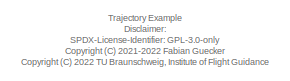
[diagram: root canvas - part 1/3, top center region]
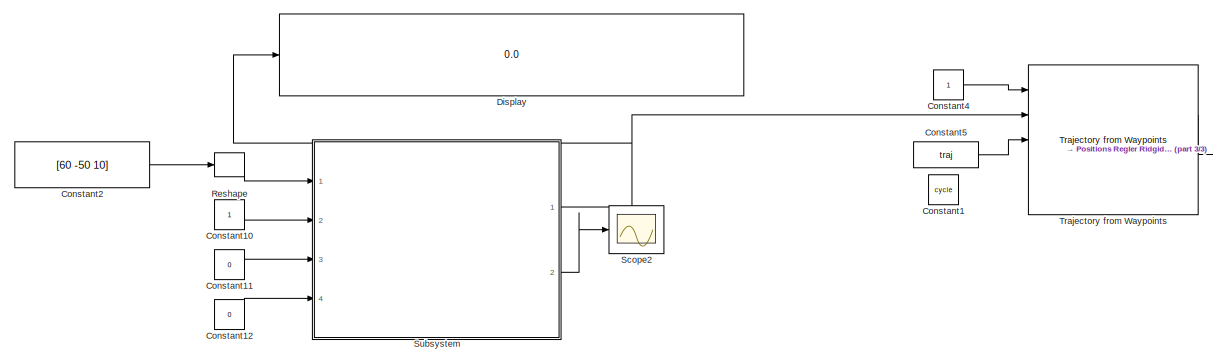
[diagram: root canvas - part 2/3, middle left region]
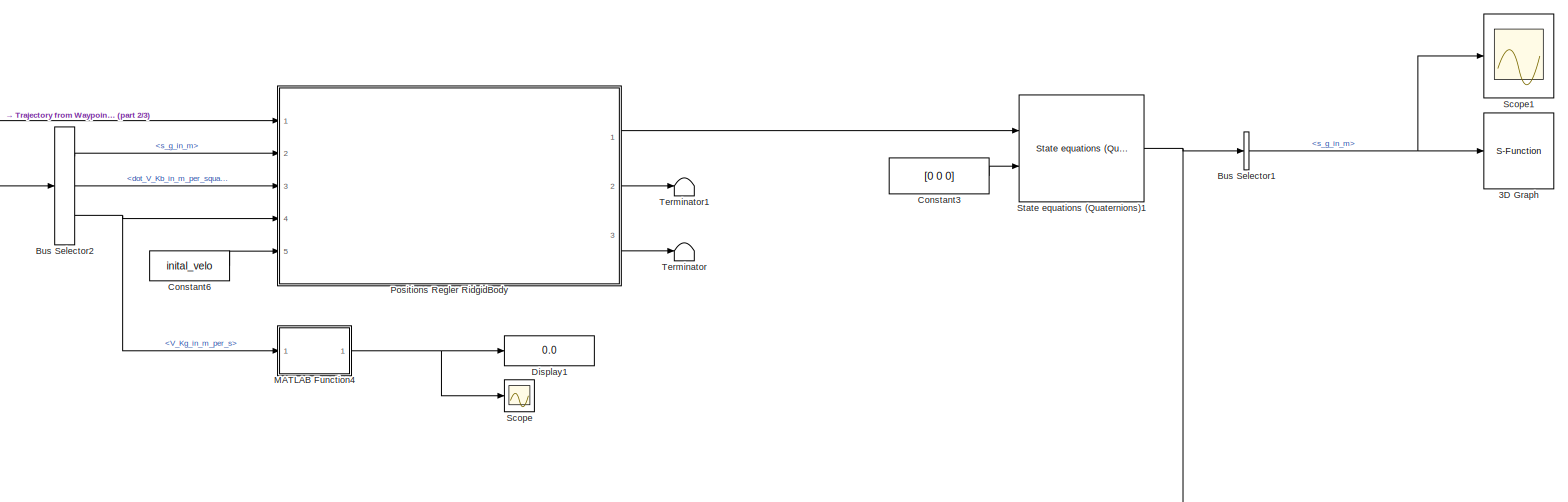
[diagram: root canvas - part 3/3, middle right region]
MODEL slx_0a0ea8a3a453
KIND model
CONFIG AbsTol = auto
CONFIG EnableMultiTasking = off
CONFIG FixedStep = 0.001
CONFIG MaxStep = auto
CONFIG MinStep = auto
CONFIG RelTol = 1e-3
CONFIG SampleTimeConstraint = Unconstrained
CONFIG Solver = ode1
CONFIG SolverName = ode1
CONFIG StartTime = 0.0
CONFIG StopTime = 80
BLOCK [S-Function] 3D Graph
  CopyFcn = if exist('sfun3d','file'), sfun3d([],[],[],'CopyBlock'); end
  DeleteFcn = if exist('sfun3d','file'), sfun3d([],[],[],'DeleteBlock'); end
  EnableBusSupport = off
  FunctionName = sfun3d
  LoadFcn = if exist('sfun3d','file'), sfun3d([],[],[],'LoadBlock'); end
  NameChangeFcn = if exist('sfun3d','file'), sfun3d([],[],[],'NameChange'); end
  Parameters = ax,T,np,cp,gd,ls,mk,mx,hd,tb
  Ports = [1]
  SFcnIsStateOwnerBlock = off
  SFunctionDeploymentMode = off
BLOCK [BusSelector] Bus Selector1
  OutputAsBus = off
  OutputSignals = s_g_in_m
  Ports = [1, 1]
BLOCK [BusSelector] Bus Selector2
  OutputAsBus = off
  OutputSignals = s_g_in_m,dot_V_Kb_in_m_per_square_s,V_Kg_in_m_per_s
  Ports = [1, 3]
BLOCK [Constant] Constant1
  OutDataTypeStr = boolean
  Value = cycle
BLOCK [Constant] Constant10
BLOCK [Constant] Constant11
  Value = 0
BLOCK [Constant] Constant12
  Value = 0
BLOCK [Constant] Constant2
  Value = [60 -50 10]
BLOCK [Constant] Constant3
  Value = [0 0 0]
BLOCK [Constant] Constant4
  OutDataTypeStr = boolean
BLOCK [Constant] Constant5
  OutDataTypeStr = Bus: trajectoryBus
  Value = traj
BLOCK [Constant] Constant6
  Value = inital_velo
BLOCK [Display] Display
  Decimation = 1
  Ports = [1]
BLOCK [Display] Display1
  Decimation = 1
  Ports = [1]
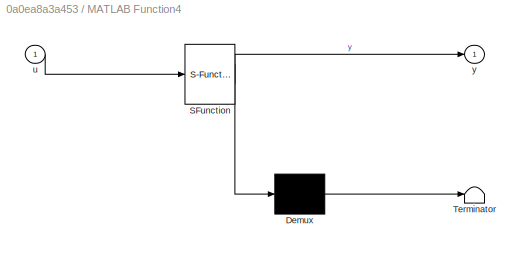
BLOCK [SubSystem] MATLAB Function4
  ErrorFcn = Stateflow.Translate.translate
  PermitHierarchicalResolution = ExplicitOnly
  Ports = [1, 1]
  RequestExecContextInheritance = off
  SFBlockType = MATLAB Function
  TreatAsAtomicUnit = on
BLOCK [Demux] MATLAB Function4/ Demux 
  Outputs = 1
  Ports = [1, 1]
BLOCK [S-Function] MATLAB Function4/ SFunction 
  EnableBusSupport = on
  FunctionName = sf_sfun
  PortCounts = [1 2]
  Ports = [1, 2]
  SFcnIsStateOwnerBlock = off
  SFunctionDeploymentMode = off
  Tag = Stateflow S-Function traj_controller_mass_point_example 6
BLOCK [Terminator] MATLAB Function4/ Terminator 
BLOCK [Inport] MATLAB Function4/u
  IconDisplay = Port number
BLOCK [Outport] MATLAB Function4/y
  IconDisplay = Port number
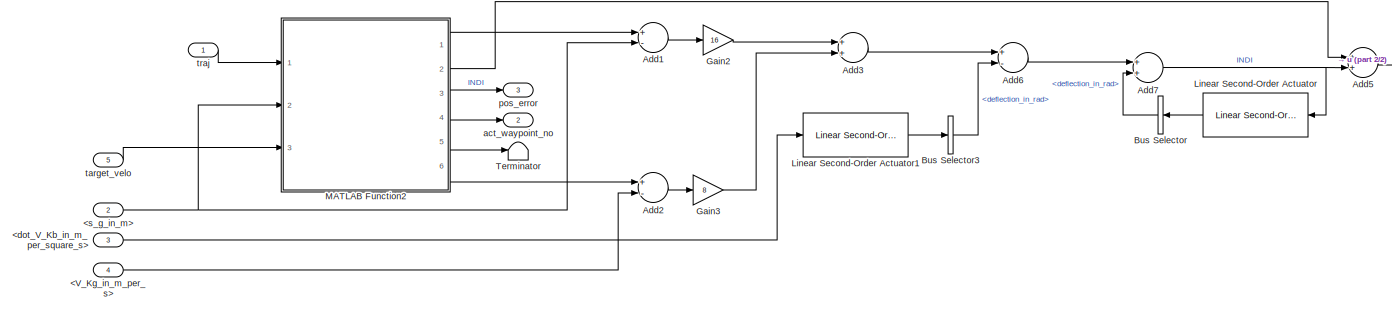
[diagram: Positions Regler RidgidBody - part 1/2, most of the canvas]
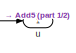
[diagram: Positions Regler RidgidBody - part 2/2, top right region]
BLOCK [SubSystem] Positions Regler RidgidBody
  Ports = [5, 3]
  RequestExecContextInheritance = off
BLOCK [Inport] Positions Regler RidgidBody/<V_Kg_in_m_per_s>
  IconDisplay = Port number
  Port = 4
BLOCK [Inport] Positions Regler RidgidBody/<dot_V_Kb_in_m_per_square_s>
  IconDisplay = Port number
  Port = 3
BLOCK [Inport] Positions Regler RidgidBody/<s_g_in_m>
  IconDisplay = Port number
  Port = 2
BLOCK [Sum] Positions Regler RidgidBody/Add1
  InputSameDT = off
  Inputs = +-
  OutDataTypeStr = Inherit: Inherit via internal rule
  Ports = [2, 1]
  SaturateOnIntegerOverflow = off
BLOCK [Sum] Positions Regler RidgidBody/Add2
  InputSameDT = off
  Inputs = +-
  OutDataTypeStr = Inherit: Inherit via internal rule
  Ports = [2, 1]
  SaturateOnIntegerOverflow = off
BLOCK [Sum] Positions Regler RidgidBody/Add3
  InputSameDT = off
  OutDataTypeStr = Inherit: Inherit via internal rule
  Ports = [2, 1]
  SaturateOnIntegerOverflow = off
BLOCK [Sum] Positions Regler RidgidBody/Add5
  InputSameDT = off
  OutDataTypeStr = Inherit: Inherit via internal rule
  Ports = [2, 1]
  SaturateOnIntegerOverflow = off
BLOCK [Sum] Positions Regler RidgidBody/Add6
  InputSameDT = off
  Inputs = +-
  OutDataTypeStr = Inherit: Inherit via internal rule
  Ports = [2, 1]
  SaturateOnIntegerOverflow = off
BLOCK [Sum] Positions Regler RidgidBody/Add7
  InputSameDT = off
  OutDataTypeStr = Inherit: Inherit via internal rule
  Ports = [2, 1]
  SaturateOnIntegerOverflow = off
BLOCK [BusSelector] Positions Regler RidgidBody/Bus Selector
  OutputAsBus = off
  OutputSignals = deflection_in_rad
  Ports = [1, 1]
BLOCK [BusSelector] Positions Regler RidgidBody/Bus Selector3
  OutputAsBus = off
  OutputSignals = deflection_in_rad
  Ports = [1, 1]
BLOCK [Gain] Positions Regler RidgidBody/Gain2
  Gain = 16
  OutDataTypeStr = Inherit: Inherit via internal rule
  ParamDataTypeStr = Inherit: Inherit via internal rule
  SaturateOnIntegerOverflow = off
BLOCK [Gain] Positions Regler RidgidBody/Gain3
  Gain = 8
  OutDataTypeStr = Inherit: Inherit via internal rule
  ParamDataTypeStr = Inherit: Inherit via internal rule
  SaturateOnIntegerOverflow = off
BLOCK [Reference] Positions Regler RidgidBody/Linear Second-Order Actuator  REF=actuators_lib/Linear Second-Order Actuator  (lib defined in slx_c2decc952d1f)
  Ports = [1, 1]
  SourceBlock = actuators_lib/Linear Second-Order Actuator
  SourceProductName = LADAC
BLOCK [Reference] Positions Regler RidgidBody/Linear Second-Order Actuator1  REF=actuators_lib/Linear Second-Order Actuator  (lib defined in slx_c2decc952d1f)
  Ports = [1, 1]
  SourceBlock = actuators_lib/Linear Second-Order Actuator
  SourceProductName = LADAC
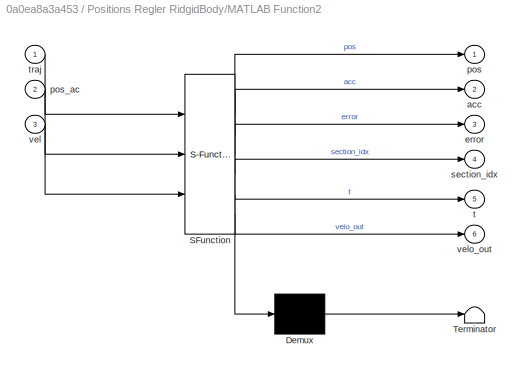
BLOCK [SubSystem] Positions Regler RidgidBody/MATLAB Function2
  ErrorFcn = Stateflow.Translate.translate
  PermitHierarchicalResolution = ExplicitOnly
  Ports = [3, 6]
  RequestExecContextInheritance = off
  SFBlockType = MATLAB Function
  TreatAsAtomicUnit = on
BLOCK [Demux] Positions Regler RidgidBody/MATLAB Function2/ Demux 
  Outputs = 1
  Ports = [1, 1]
BLOCK [S-Function] Positions Regler RidgidBody/MATLAB Function2/ SFunction 
  EnableBusSupport = on
  FunctionName = sf_sfun
  PortCounts = [3 7]
  Ports = [3, 7]
  SFcnIsStateOwnerBlock = off
  SFunctionDeploymentMode = off
  Tag = Stateflow S-Function traj_controller_mass_point_example 5
BLOCK [Terminator] Positions Regler RidgidBody/MATLAB Function2/ Terminator 
BLOCK [Outport] Positions Regler RidgidBody/MATLAB Function2/acc
  IconDisplay = Port number
  Port = 2
BLOCK [Outport] Positions Regler RidgidBody/MATLAB Function2/error
  IconDisplay = Port number
  Port = 3
BLOCK [Outport] Positions Regler RidgidBody/MATLAB Function2/pos
  IconDisplay = Port number
BLOCK [Inport] Positions Regler RidgidBody/MATLAB Function2/pos_ac
  IconDisplay = Port number
  Port = 2
BLOCK [Outport] Positions Regler RidgidBody/MATLAB Function2/section_idx
  IconDisplay = Port number
  Port = 4
BLOCK [Outport] Positions Regler RidgidBody/MATLAB Function2/t
  IconDisplay = Port number
  Port = 5
BLOCK [Inport] Positions Regler RidgidBody/MATLAB Function2/traj
  IconDisplay = Port number
BLOCK [Inport] Positions Regler RidgidBody/MATLAB Function2/vel
  IconDisplay = Port number
  Port = 3
BLOCK [Outport] Positions Regler RidgidBody/MATLAB Function2/velo_out
  IconDisplay = Port number
  Port = 6
BLOCK [Terminator] Positions Regler RidgidBody/Terminator
BLOCK [Outport] Positions Regler RidgidBody/act_waypoint_no
  IconDisplay = Port number
  Port = 2
BLOCK [Outport] Positions Regler RidgidBody/pos_error
  IconDisplay = Port number
  Port = 3
BLOCK [Inport] Positions Regler RidgidBody/target_velo
  IconDisplay = Port number
  Port = 5
BLOCK [Inport] Positions Regler RidgidBody/traj
  IconDisplay = Port number
BLOCK [Outport] Positions Regler RidgidBody/u
  IconDisplay = Port number
BLOCK [Reshape] Reshape
  OutputDimensionality = Column vector (2-D)
  Ports = [1, 1]
BLOCK [Scope] Scope
  Floating = off
  NumInputPorts = 1
  Ports = [1]
  ScopeSpecificationString = Simulink.scopes.TimeScopeBlockCfg('CurrentConfiguration', extmgr.ConfigurationSet(extmgr.Configuration('Core','General UI',true),extmgr.Configuration('Core','Source UI',true),extmgr.Configuration('Sources','WiredSimulink',true,'DataLoggingVariableName','ScopeData2'),extmgr.Configuration('Visuals','Time Domain',true,'SerializedDisplays',{struct('MinYLimReal','7.27456','MaxYLimReal','8.70829','YLabe...<+1446ch>
BLOCK [Scope] Scope1
  Floating = off
  NumInputPorts = 1
  Ports = [1]
  ScopeSpecificationString = Simulink.scopes.TimeScopeBlockCfg('CurrentConfiguration', extmgr.ConfigurationSet(extmgr.Configuration('Core','General UI',true),extmgr.Configuration('Core','Source UI',true),extmgr.Configuration('Sources','WiredSimulink',true,'DataLoggingVariableName','ScopeData1'),extmgr.Configuration('Visuals','Time Domain',true,'SerializedDisplays',{struct('MinYLimReal','-12.2333','MaxYLimReal','40.09969','YLa...<+1436ch>
BLOCK [Scope] Scope2
  Floating = off
  NumInputPorts = 1
  Ports = [1]
  ScopeSpecificationString = Simulink.scopes.TimeScopeBlockCfg('CurrentConfiguration', extmgr.ConfigurationSet(extmgr.Configuration('Core','General UI',true),extmgr.Configuration('Core','Source UI',true),extmgr.Configuration('Sources','WiredSimulink',true,'DataLoggingVariableName','ScopeData1'),extmgr.Configuration('Visuals','Time Domain',true,'SerializedDisplays',{struct('MinYLimReal','-0.125','MaxYLimReal','1.125','YLabelRe...<+1429ch>
BLOCK [Reference] State equations (Quaternions)1  REF=rigidBody_lib/State equations
(Quaternions)
  Ports = [2, 1]
  SourceBlock = rigidBody_lib/State equations\n(Quaternions)
  SourceProductName = LADAC
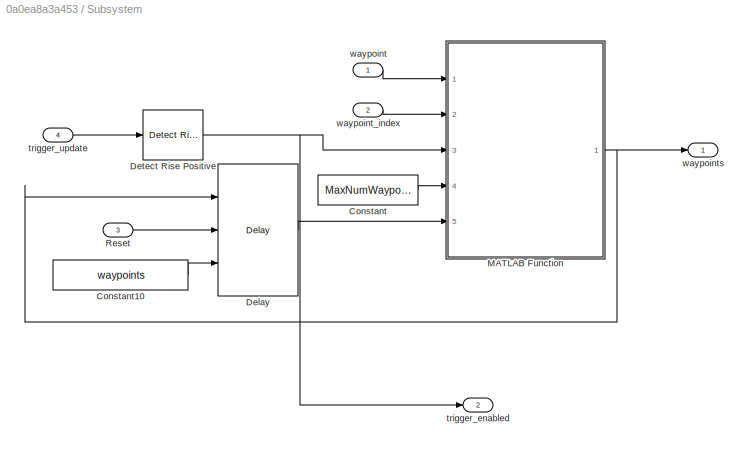
BLOCK [SubSystem] Subsystem
  Ports = [4, 2]
  RequestExecContextInheritance = off
BLOCK [Constant] Subsystem/Constant
  Value = MaxNumWaypoints
BLOCK [Constant] Subsystem/Constant10
  Value = waypoints
BLOCK [Delay] Subsystem/Delay
  DelayLength = 1
  ExternalReset = Rising
  InitialConditionSource = Input port
  InputPortMap = u0,r5,p4
  Ports = [3, 1]
BLOCK [Reference] Subsystem/Detect Rise Positive  REF=simulink/Logic and Bit
Operations/Detect Rise
Positive
  Ports = [1, 1]
  SourceBlock = simulink/Logic and Bit\nOperations/Detect Rise\nPositive
  SourceProductBaseCode = SL
  SourceProductName = Simulink
  SourceType = Detect Rise Positive
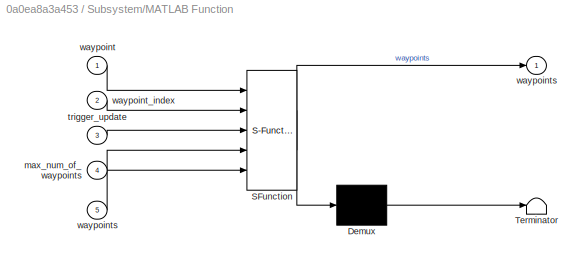
BLOCK [SubSystem] Subsystem/MATLAB Function
  ErrorFcn = Stateflow.Translate.translate
  PermitHierarchicalResolution = ExplicitOnly
  Ports = [5, 1]
  RequestExecContextInheritance = off
  SFBlockType = MATLAB Function
  TreatAsAtomicUnit = on
BLOCK [Demux] Subsystem/MATLAB Function/ Demux 
  Outputs = 1
  Ports = [1, 1]
BLOCK [S-Function] Subsystem/MATLAB Function/ SFunction 
  EnableBusSupport = on
  FunctionName = sf_sfun
  PortCounts = [5 2]
  Ports = [5, 2]
  SFcnIsStateOwnerBlock = off
  SFunctionDeploymentMode = off
  Tag = Stateflow S-Function traj_controller_mass_point_example 3
BLOCK [Terminator] Subsystem/MATLAB Function/ Terminator 
BLOCK [Inport] Subsystem/MATLAB Function/max_num_of_waypoints
  IconDisplay = Port number
  Port = 4
BLOCK [Inport] Subsystem/MATLAB Function/trigger_update
  IconDisplay = Port number
  Port = 3
BLOCK [Inport] Subsystem/MATLAB Function/waypoint
  IconDisplay = Port number
BLOCK [Inport] Subsystem/MATLAB Function/waypoint_index
  IconDisplay = Port number
  Port = 2
BLOCK [Outport] Subsystem/MATLAB Function/waypoints
  IconDisplay = Port number
BLOCK [Inport] Subsystem/MATLAB Function/waypoints 
  IconDisplay = Port number
  Port = 5
BLOCK [Inport] Subsystem/Reset
  IconDisplay = Port number
  Port = 3
BLOCK [Outport] Subsystem/trigger_enabled
  IconDisplay = Port number
  Port = 2
BLOCK [Inport] Subsystem/trigger_update
  IconDisplay = Port number
  Port = 4
BLOCK [Inport] Subsystem/waypoint
  IconDisplay = Port number
BLOCK [Inport] Subsystem/waypoint_index
  IconDisplay = Port number
  Port = 2
BLOCK [Outport] Subsystem/waypoints
  IconDisplay = Port number
BLOCK [Terminator] Terminator
BLOCK [Terminator] Terminator1
BLOCK [Reference] Trajectory from Waypoints  REF=traj_lib/Trajectory from Waypoints  (lib defined in slx_5b1c91620ded)
  Ports = [5, 2]
  SourceBlock = traj_lib/Trajectory from Waypoints
  SourceProductName = LADAC
ANNOTATION (root): Trajectory Example Disclaimer: SPDX-License-Identifier: GPL-3.0-only <copyright redacted>
NET Bus Selector1:1 -> 3D Graph:1, Scope1:1
LINE Bus Selector2:1 -> Positions Regler RidgidBody:2
LINE Bus Selector2:2 -> Positions Regler RidgidBody:3
NET Bus Selector2:3 -> MATLAB Function4:1, Positions Regler RidgidBody:4
LINE Constant10:1 -> Subsystem:2
LINE Constant11:1 -> Subsystem:3
LINE Constant12:1 -> Subsystem:4
LINE Constant2:1 -> Reshape:1
LINE Constant3:1 -> State equations (Quaternions)1:2
LINE Constant4:1 -> Trajectory from Waypoints:1
LINE Constant5:1 -> Trajectory from Waypoints:3
LINE Constant6:1 -> Positions Regler RidgidBody:5
NET MATLAB Function4:1 -> Display1:1, Scope:1
LINE Positions Regler RidgidBody/<V_Kg_in_m_per_s>:1 -> Positions Regler RidgidBody/Add2:2
LINE Positions Regler RidgidBody/<dot_V_Kb_in_m_per_square_s>:1 -> Positions Regler RidgidBody/Linear Second-Order Actuator1:1
NET Positions Regler RidgidBody/<s_g_in_m>:1 -> Positions Regler RidgidBody/Add1:2, Positions Regler RidgidBody/MATLAB Function2:2
LINE Positions Regler RidgidBody/Add1:1 -> Positions Regler RidgidBody/Gain2:1
LINE Positions Regler RidgidBody/Add2:1 -> Positions Regler RidgidBody/Gain3:1
LINE Positions Regler RidgidBody/Add3:1 -> Positions Regler RidgidBody/Add6:1
LINE Positions Regler RidgidBody/Add5:1 -> Positions Regler RidgidBody/u:1
LINE Positions Regler RidgidBody/Add6:1 -> Positions Regler RidgidBody/Add7:1
NET Positions Regler RidgidBody/Add7:1 -> Positions Regler RidgidBody/Add5:2, Positions Regler RidgidBody/Linear Second-Order Actuator:1
LINE Positions Regler RidgidBody/Bus Selector3:1 -> Positions Regler RidgidBody/Add6:2
LINE Positions Regler RidgidBody/Bus Selector:1 -> Positions Regler RidgidBody/Add7:2
LINE Positions Regler RidgidBody/Gain2:1 -> Positions Regler RidgidBody/Add3:1
LINE Positions Regler RidgidBody/Gain3:1 -> Positions Regler RidgidBody/Add3:2
LINE Positions Regler RidgidBody/Linear Second-Order Actuator1:1 -> Positions Regler RidgidBody/Bus Selector3:1
LINE Positions Regler RidgidBody/Linear Second-Order Actuator:1 -> Positions Regler RidgidBody/Bus Selector:1
LINE Positions Regler RidgidBody/MATLAB Function2:1 -> Positions Regler RidgidBody/Add1:1
LINE Positions Regler RidgidBody/MATLAB Function2:2 -> Positions Regler RidgidBody/Add5:1
LINE Positions Regler RidgidBody/MATLAB Function2:3 -> Positions Regler RidgidBody/pos_error:1
LINE Positions Regler RidgidBody/MATLAB Function2:4 -> Positions Regler RidgidBody/act_waypoint_no:1
LINE Positions Regler RidgidBody/MATLAB Function2:5 -> Positions Regler RidgidBody/Terminator:1
LINE Positions Regler RidgidBody/MATLAB Function2:6 -> Positions Regler RidgidBody/Add2:1
LINE Positions Regler RidgidBody/target_velo:1 -> Positions Regler RidgidBody/MATLAB Function2:3
LINE Positions Regler RidgidBody/traj:1 -> Positions Regler RidgidBody/MATLAB Function2:1
LINE Positions Regler RidgidBody:1 -> State equations (Quaternions)1:1
LINE Positions Regler RidgidBody:2 -> Terminator1:1
LINE Positions Regler RidgidBody:3 -> Terminator:1
LINE Reshape:1 -> Subsystem:1
NET State equations (Quaternions)1:1 -> Bus Selector1:1, Bus Selector2:1
LINE Subsystem/Constant10:1 -> Subsystem/Delay:3
LINE Subsystem/Constant:1 -> Subsystem/MATLAB Function:4
LINE Subsystem/Delay:1 -> Subsystem/MATLAB Function:5
NET Subsystem/Detect Rise Positive:1 -> Subsystem/MATLAB Function:3, Subsystem/trigger_enabled:1
NET Subsystem/MATLAB Function:1 -> Subsystem/Delay:1, Subsystem/waypoints:1
LINE Subsystem/Reset:1 -> Subsystem/Delay:2
LINE Subsystem/trigger_update:1 -> Subsystem/Detect Rise Positive:1
LINE Subsystem/waypoint:1 -> Subsystem/MATLAB Function:1
LINE Subsystem/waypoint_index:1 -> Subsystem/MATLAB Function:2
NET Subsystem:1 -> Display:1, Trajectory from Waypoints:2
LINE Subsystem:2 -> Scope2:1
LINE Trajectory from Waypoints:1 -> Positions Regler RidgidBody:1
note: NET lines group one-source signal fan-out (src -> all destinations, sorted); 1:1 wires keep LINE
CHART Subsystem/MATLAB Function states=1 transitions=1
  STATE_LABEL 'eML_blk_kernel()'
  STATE_LABEL 'SCRIPT:\nfunction waypoints = fcn(waypoint, waypoint_index, trigger_update, max_num_of_waypoints, waypoints)\n\nif(trigger_update)\n    if(waypoint_index >= 1) && (waypoint_index <= max_num_of_waypoints)\n        waypoints(:,waypoint_index) = waypoint;\n    end\nend\n\nend\n'
CHART Positions Regler RidgidBody/MATLAB Function2 states=1 transitions=1
  STATE_LABEL 'eML_blk_kernel()'
  STATE_LABEL 'SCRIPT:\nfunction [pos, acc, error,section_idx, t, velo_out]  = GetMatch(traj, pos_ac, vel)\n\nsection_idx = 1;\n\n[section_idx, error, t] = trajGetMatch(traj, pos_ac, section_idx);\n\nactive_section = trajGetSection(traj, section_idx);\n\npos = trajSectionGetPos(active_section, t);\n\nacc = trajSectionGetAcc(active_section, vel, t);\n\n[T] = trajSectionGetFrenetSerret(active_section, t);\n\n% Replace NaNs with ...<+51ch>'
CHART MATLAB Function4 states=1 transitions=1
  STATE_LABEL 'eML_blk_kernel()'
  STATE_LABEL 'SCRIPT:\nfunction y = fcn(u)\n\ny = norm(u);\n'
